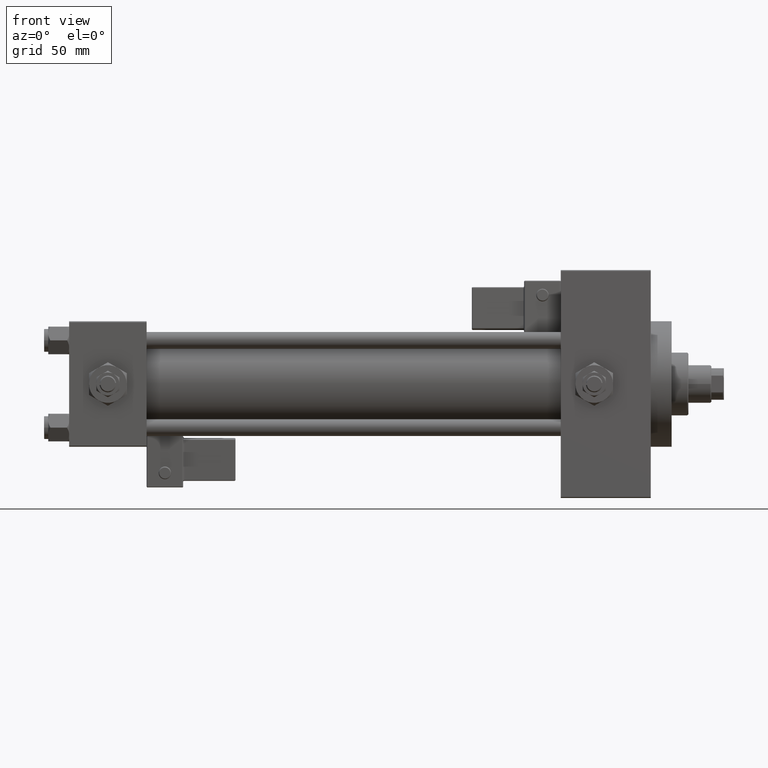
[diagram: clean part render]
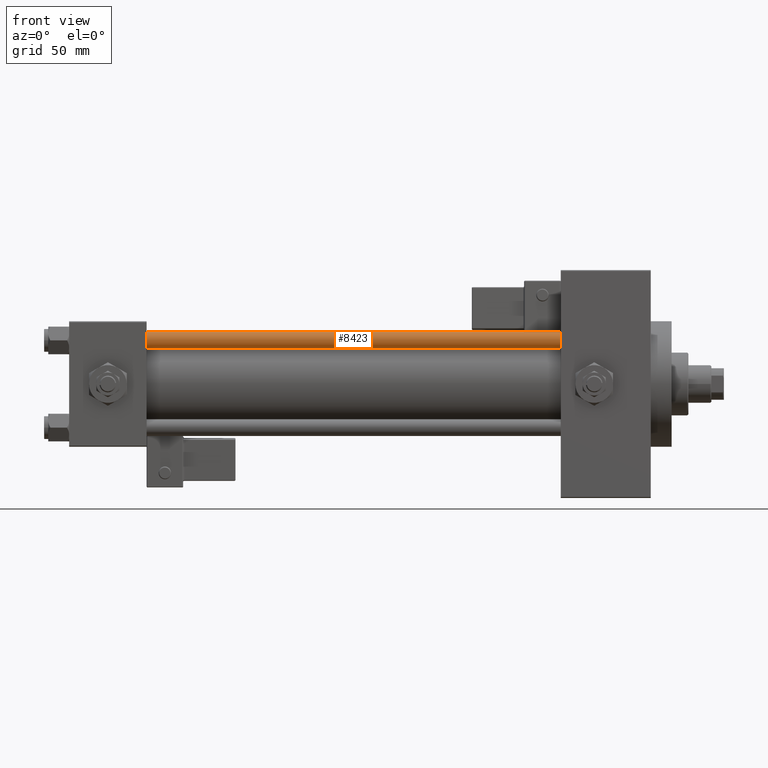
[diagram: same view with one face highlighted and labeled with its STEP entity id]
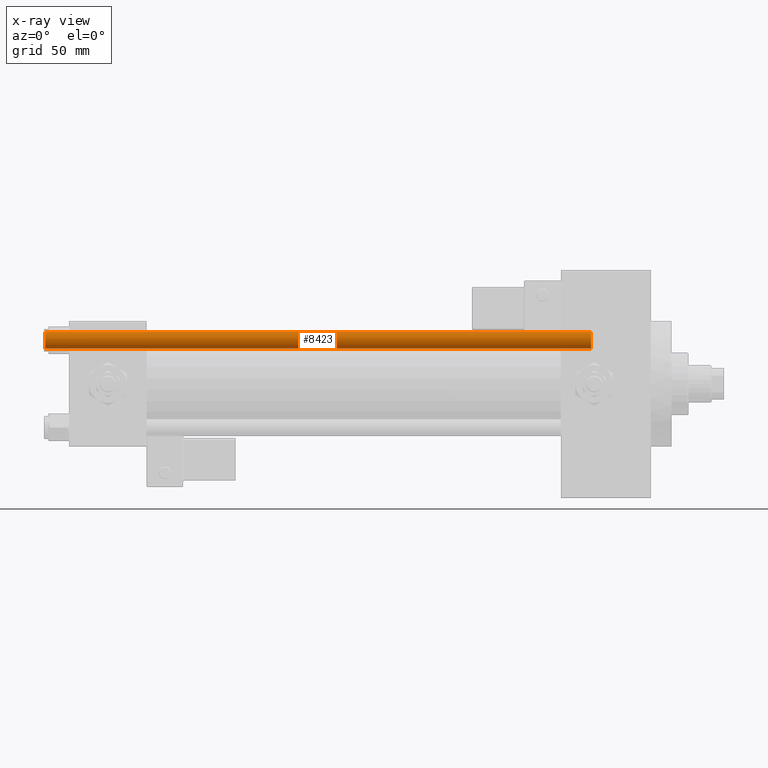
[diagram: x-ray of the same camera — body ghosted, the highlighted face saturated]
A machine part, front view. The second image highlights one B-rep face of the part: STEP entity #8423.
The next image is the same camera in x-ray: the body ghosted, the highlighted face saturated — about 0% of this face is hidden behind the body in this view.
In plain terms, the highlighted cylindrical surface (edge-blend (fillet) strip) has radius 4 mm, axis along (1, 0, 0).
Its self-contained STEP definition (entity closure, byte-faithful):
#179 = DIRECTION ( 'NONE',  ( -0.000000000000000000, -0.000000000000000000, -1.000000000000000000 ) ) ;
#1715 = EDGE_CURVE ( 'NONE', #26995, #38267, #49528, .T. ) ;
#2519 = DIRECTION ( 'NONE',  ( 1.000000000000000000, 0.000000000000000000, 0.000000000000000000 ) ) ;
#6864 = DIRECTION ( 'NONE',  ( -0.000000000000000000, -0.000000000000000000, -1.000000000000000000 ) ) ;
#7881 = EDGE_CURVE ( 'NONE', #26995, #30357, #49127, .T. ) ;
#8423 = ADVANCED_FACE ( 'NONE', ( #43939 ), #36393, .T. ) ;
#8555 = DIRECTION ( 'NONE',  ( -0.000000000000000000, -0.000000000000000000, -1.000000000000000000 ) ) ;
#10853 = EDGE_LOOP ( 'NONE', ( #40982, #44474, #36247, #49237 ) ) ;
#15066 = CARTESIAN_POINT ( 'NONE',  ( -4.000000000000000000, 0.000000000000000000, 261.5000000000000000 ) ) ;
#19667 = CARTESIAN_POINT ( 'NONE',  ( 0.000000000000000000, 0.000000000000000000, 261.5000000000000000 ) ) ;
#24187 = CARTESIAN_POINT ( 'NONE',  ( 4.000000000000000000, 4.898587196589412829E-16, 0.5000000000000559552 ) ) ;
#26169 = EDGE_CURVE ( 'NONE', #37959, #30357, #36059, .T. ) ;
#26625 = CARTESIAN_POINT ( 'NONE',  ( -4.000000000000000000, 0.000000000000000000, 262.0000000000000000 ) ) ;
#26995 = VERTEX_POINT ( 'NONE', #15066 ) ;
#28055 = CARTESIAN_POINT ( 'NONE',  ( 0.000000000000000000, 0.000000000000000000, 262.0000000000000000 ) ) ;
#30357 = VERTEX_POINT ( 'NONE', #42654 ) ;
#32145 = DIRECTION ( 'NONE',  ( 1.000000000000000000, 0.000000000000000000, 0.000000000000000000 ) ) ;
#32452 = CARTESIAN_POINT ( 'NONE',  ( 4.000000000000000000, 4.898587196589412829E-16, 262.0000000000000000 ) ) ;
#33024 = VECTOR ( 'NONE', #6864, 1000.000000000000000 ) ;
#36059 = CIRCLE ( 'NONE', #37725, 4.000000000000000000 ) ;
#36102 = LINE ( 'NONE', #32452, #45396 ) ;
#36247 = ORIENTED_EDGE ( 'NONE', *, *, #26169, .T. ) ;
#36393 = CYLINDRICAL_SURFACE ( 'NONE', #38792, 4.000000000000000000 ) ;
#37725 = AXIS2_PLACEMENT_3D ( 'NONE', #50155, #38171, #2519 ) ;
#37959 = VERTEX_POINT ( 'NONE', #24187 ) ;
#38171 = DIRECTION ( 'NONE',  ( -0.000000000000000000, -0.000000000000000000, 1.000000000000000000 ) ) ;
#38267 = VERTEX_POINT ( 'NONE', #39990 ) ;
#38675 = AXIS2_PLACEMENT_3D ( 'NONE', #19667, #48040, #32145 ) ;
#38792 = AXIS2_PLACEMENT_3D ( 'NONE', #28055, #8555, #47844 ) ;
#39264 = EDGE_CURVE ( 'NONE', #38267, #37959, #36102, .T. ) ;
#39990 = CARTESIAN_POINT ( 'NONE',  ( 4.000000000000000000, 4.898587196589412829E-16, 261.5000000000000000 ) ) ;
#40982 = ORIENTED_EDGE ( 'NONE', *, *, #1715, .T. ) ;
#42654 = CARTESIAN_POINT ( 'NONE',  ( -4.000000000000000000, 0.000000000000000000, 0.5000000000000559552 ) ) ;
#43939 = FACE_OUTER_BOUND ( 'NONE', #10853, .T. ) ;
#44474 = ORIENTED_EDGE ( 'NONE', *, *, #39264, .T. ) ;
#45396 = VECTOR ( 'NONE', #179, 1000.000000000000000 ) ;
#47844 = DIRECTION ( 'NONE',  ( -1.000000000000000000, 0.000000000000000000, 0.000000000000000000 ) ) ;
#48040 = DIRECTION ( 'NONE',  ( 0.000000000000000000, 0.000000000000000000, -1.000000000000000000 ) ) ;
#49127 = LINE ( 'NONE', #26625, #33024 ) ;
#49237 = ORIENTED_EDGE ( 'NONE', *, *, #7881, .F. ) ;
#49528 = CIRCLE ( 'NONE', #38675, 4.000000000000000000 ) ;
#50155 = CARTESIAN_POINT ( 'NONE',  ( 0.000000000000000000, 0.000000000000000000, 0.5000000000000559552 ) ) ;